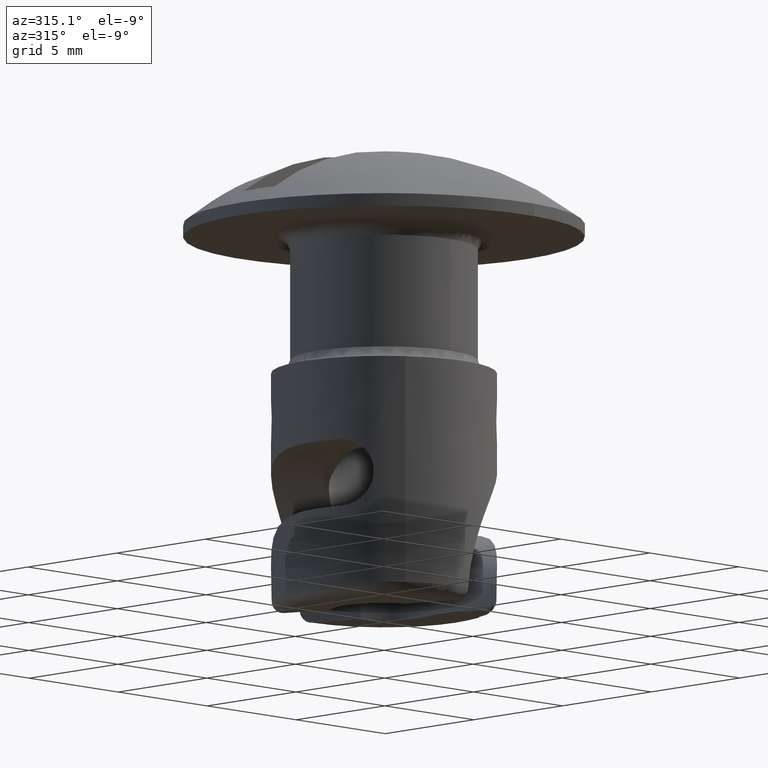
[diagram: clean part render]
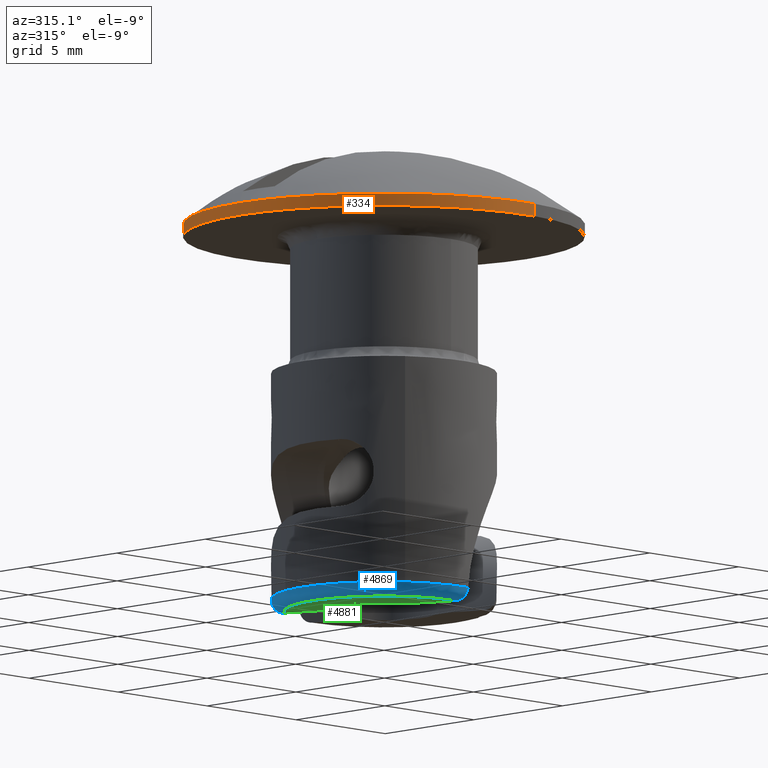
[diagram: same view with three faces highlighted in distinct colors, each labeled with its STEP entity id]
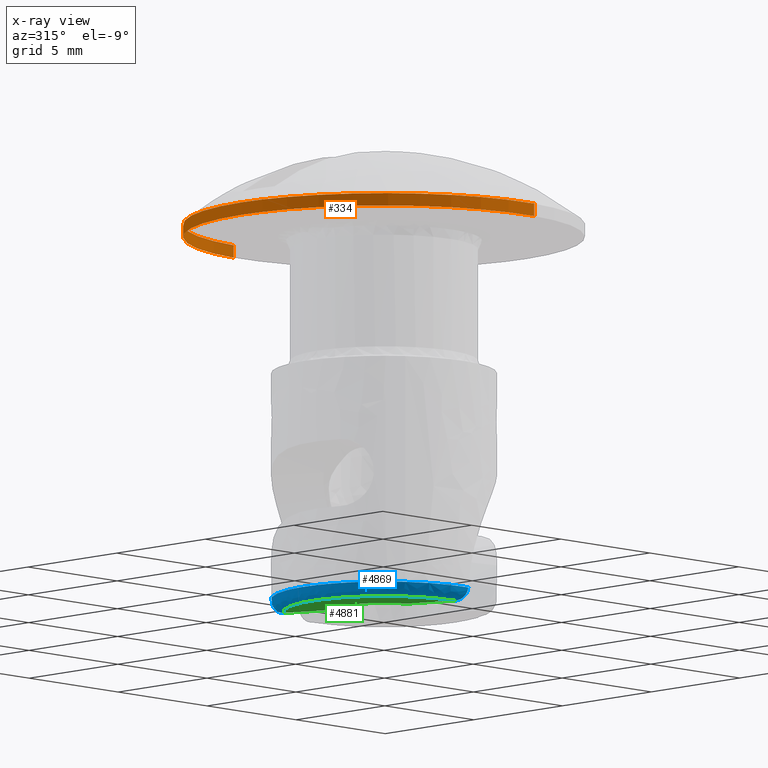
[diagram: x-ray of the same camera — body ghosted, the three highlighted faces saturated]
A machine part, auxiliary view with three faces highlighted in distinct colors.
The next image is the same camera in x-ray (body ghosted, the three faces saturated) — at least one of them is partly hidden behind the body in this view.
Their STEP definitions:

[orange] entity #334 — the highlighted face is a freeform B-spline surface patch.
#140=CARTESIAN_POINT('',(0.488382248304818,-7.985078758503498,0.500000000000000));
#141=VERTEX_POINT('',#140);
#142=CARTESIAN_POINT('',(-8.0,0.0,0.500000000000000));
#143=VERTEX_POINT('',#142);
#144=CARTESIAN_POINT('',(0.488382248304818,-7.985078758503498,0.500000000000000));
#145=CARTESIAN_POINT('',(0.244419063894726,-7.999999999997727,0.500000000000000));
#146=CARTESIAN_POINT('',(-1.360641E-013,-7.999999999997762,0.500000000000000));
#147=CARTESIAN_POINT('',(-8.000000000000066,-7.999999999998915,0.500000000000000));
#148=CARTESIAN_POINT('',(-8.0,0.0,0.500000000000000));
#156=(BOUNDED_CURVE()B_SPLINE_CURVE(2,(#144,#145,#146,#147,#148),.UNSPECIFIED.,.F.,.U.)B_SPLINE_CURVE_WITH_KNOTS((3,2,3),(0.739333093362728,0.750000000000000,1.0),.UNSPECIFIED.)CURVE()GEOMETRIC_REPRESENTATION_ITEM()RATIONAL_B_SPLINE_CURVE((0.976072322690110,0.987502941520907,1.0,0.707106781186548,1.0))REPRESENTATION_ITEM(''));
#157=EDGE_CURVE('',#141,#143,#156,.T.);
#174=CARTESIAN_POINT('',(-0.488382248304819,7.985078758503498,0.500000000000000));
#175=VERTEX_POINT('',#174);
#191=CARTESIAN_POINT('',(-8.0,0.0,0.500000000000000));
#192=CARTESIAN_POINT('',(-7.999999999999930,7.525654264779715,0.500000000000000));
#193=CARTESIAN_POINT('',(-0.488382248304818,7.985078758503499,0.500000000000000));
#201=(BOUNDED_CURVE()B_SPLINE_CURVE(2,(#191,#192,#193),.UNSPECIFIED.,.F.,.U.)B_SPLINE_CURVE_WITH_KNOTS((3,3),(0.0,0.239333093362728),.UNSPECIFIED.)CURVE()GEOMETRIC_REPRESENTATION_ITEM()RATIONAL_B_SPLINE_CURVE((1.0,0.719603839665640,0.976072322690110))REPRESENTATION_ITEM(''));
#202=EDGE_CURVE('',#143,#175,#201,.T.);
#231=CARTESIAN_POINT('',(-0.488382172481899,7.985078763140910,-1.278951E-013));
#232=VERTEX_POINT('',#231);
#250=CARTESIAN_POINT('',(-0.488382248304819,7.985078758503498,0.500000000000000));
#251=CARTESIAN_POINT('',(-0.488382172481899,7.985078763140910,-1.278951E-013));
#252=QUASI_UNIFORM_CURVE('',1,(#250,#251),.UNSPECIFIED.,.F.,.U.);
#253=EDGE_CURVE('',#175,#232,#252,.T.);
#257=CARTESIAN_POINT('',(0.488382172481897,-7.985078763140910,-1.278378E-013));
#258=VERTEX_POINT('',#257);
#259=CARTESIAN_POINT('',(0.488382248304818,-7.985078758503498,0.500000000000000));
#260=CARTESIAN_POINT('',(0.488382172481897,-7.985078763140910,-1.278378E-013));
#261=QUASI_UNIFORM_CURVE('',1,(#259,#260),.UNSPECIFIED.,.F.,.U.);
#262=EDGE_CURVE('',#141,#258,#261,.T.);
#280=CARTESIAN_POINT('',(0.488388316278856,-7.985078387374934,0.512500000000000));
#281=CARTESIAN_POINT('',(-7.496690071096078,-8.473466703653790,0.512500000000000));
#282=CARTESIAN_POINT('',(-7.985078387374934,-0.488388316278856,0.512500000000000));
#283=CARTESIAN_POINT('',(-8.473466703653790,7.496690071096078,0.512500000000000));
#284=CARTESIAN_POINT('',(-0.488388316278856,7.985078387374934,0.512500000000000));
#285=CARTESIAN_POINT('',(0.488388316278856,-7.985078387374934,-0.012812500000000));
#286=CARTESIAN_POINT('',(-7.496690071096078,-8.473466703653790,-0.012812500000000));
#287=CARTESIAN_POINT('',(-7.985078387374934,-0.488388316278856,-0.012812500000000));
#288=CARTESIAN_POINT('',(-8.473466703653790,7.496690071096078,-0.012812500000000));
#289=CARTESIAN_POINT('',(-0.488388316278856,7.985078387374934,-0.012812500000000));
#297=(BOUNDED_SURFACE()B_SPLINE_SURFACE(2,1,((#280,#285),(#281,#286),(#282,#287),(#283,#288),(#284,#289)),.UNSPECIFIED.,.F.,.F.,.U.)B_SPLINE_SURFACE_WITH_KNOTS((3,2,3),(2,2),(0.0,13.254833995939039,26.509667991878072),(0.0,1.0),.UNSPECIFIED.)GEOMETRIC_REPRESENTATION_ITEM()RATIONAL_B_SPLINE_SURFACE(((1.0,1.0),(0.707106781186548,0.707106781186548),(1.0,1.0),(0.707106781186548,0.707106781186548),(1.0,1.0)))REPRESENTATION_ITEM('')SURFACE());
#298=CARTESIAN_POINT('',(-8.0,0.0,0.0));
#299=VERTEX_POINT('',#298);
#300=CARTESIAN_POINT('',(-8.0,0.0,0.0));
#301=CARTESIAN_POINT('',(-7.999999999999928,7.525654336373638,-6.394755E-014));
#302=CARTESIAN_POINT('',(-0.488382172481899,7.985078763140910,-1.278951E-013));
#310=(BOUNDED_CURVE()B_SPLINE_CURVE(2,(#300,#301,#302),.UNSPECIFIED.,.F.,.U.)B_SPLINE_CURVE_WITH_KNOTS((3,3),(0.0,0.239333095001159),.UNSPECIFIED.)CURVE()GEOMETRIC_REPRESENTATION_ITEM()RATIONAL_B_SPLINE_CURVE((1.0,0.719603837746098,0.976072326201585))REPRESENTATION_ITEM(''));
#311=EDGE_CURVE('',#299,#232,#310,.T.);
#312=ORIENTED_EDGE('',*,*,#311,.F.);
#313=CARTESIAN_POINT('',(0.488382172481897,-7.985078763140910,-1.278378E-013));
#314=CARTESIAN_POINT('',(0.244419025876966,-7.999999999997669,-1.260008E-013));
#315=CARTESIAN_POINT('',(-1.404811E-013,-7.999999999997706,-1.240479E-013));
#316=CARTESIAN_POINT('',(-8.000000000000069,-7.999999999998890,-6.012896E-014));
#317=CARTESIAN_POINT('',(-8.0,0.0,0.0));
#325=(BOUNDED_CURVE()B_SPLINE_CURVE(2,(#313,#314,#315,#316,#317),.UNSPECIFIED.,.F.,.U.)B_SPLINE_CURVE_WITH_KNOTS((3,2,3),(0.739333095001159,0.750000000000000,1.0),.UNSPECIFIED.)CURVE()GEOMETRIC_REPRESENTATION_ITEM()RATIONAL_B_SPLINE_CURVE((0.976072326201585,0.987502943440449,1.0,0.707106781186548,1.0))REPRESENTATION_ITEM(''));
#326=EDGE_CURVE('',#258,#299,#325,.T.);
#327=ORIENTED_EDGE('',*,*,#326,.F.);
#328=ORIENTED_EDGE('',*,*,#262,.F.);
#329=ORIENTED_EDGE('',*,*,#157,.T.);
#330=ORIENTED_EDGE('',*,*,#202,.T.);
#331=ORIENTED_EDGE('',*,*,#253,.T.);
#332=EDGE_LOOP('',(#312,#327,#328,#329,#330,#331));
#333=FACE_OUTER_BOUND('',#332,.T.);
#334=ADVANCED_FACE('',(#333),#297,.T.);

[blue] entity #4869 — the highlighted face is a freeform B-spline surface patch.
#3065=CARTESIAN_POINT('',(-2.524506964124516,-3.725166383946737,-14.600000000000000));
#3066=VERTEX_POINT('',#3065);
#3072=CARTESIAN_POINT('',(0.255835677203764,-4.492721681371959,-14.600000000000000));
#3073=VERTEX_POINT('',#3072);
#3074=CARTESIAN_POINT('',(-2.524506964124518,-3.725166383946737,-14.600000000000007));
#3075=CARTESIAN_POINT('',(-1.264178414866267,-4.579278085748483,-14.600000000000003));
#3076=CARTESIAN_POINT('',(0.255835677203766,-4.492721681371959,-14.600000000000000));
#3084=(BOUNDED_CURVE()B_SPLINE_CURVE(2,(#3074,#3075,#3076),.UNSPECIFIED.,.F.,.U.)B_SPLINE_CURVE_WITH_KNOTS((3,3),(0.742240525514748,1.0),.UNSPECIFIED.)CURVE()GEOMETRIC_REPRESENTATION_ITEM()RATIONAL_B_SPLINE_CURVE((0.903464662911373,0.900372432643656,1.0))REPRESENTATION_ITEM(''));
#3085=EDGE_CURVE('',#3066,#3073,#3084,.T.);
#3181=CARTESIAN_POINT('',(-2.793620478200045,3.527844189272160,-14.600000000000000));
#3182=VERTEX_POINT('',#3181);
#3224=CARTESIAN_POINT('',(-2.793620478200044,3.527844189272161,-14.600000000000000));
#3225=CARTESIAN_POINT('',(-5.377604140637789,1.481645636435922,-14.600000000000005));
#3226=CARTESIAN_POINT('',(-4.206240262440706,-1.599231957729317,-14.600000000000000));
#3227=CARTESIAN_POINT('',(-3.701116216030955,-2.927790389335699,-14.600000000000003));
#3228=CARTESIAN_POINT('',(-2.524506964124518,-3.725166383946737,-14.600000000000007));
#3236=(BOUNDED_CURVE()B_SPLINE_CURVE(2,(#3224,#3225,#3226,#3227,#3228),.UNSPECIFIED.,.F.,.U.)B_SPLINE_CURVE_WITH_KNOTS((3,2,3),(0.0,0.500000000000000,0.742240525514748),.UNSPECIFIED.)CURVE()GEOMETRIC_REPRESENTATION_ITEM()RATIONAL_B_SPLINE_CURVE((1.0,0.806743151623619,1.0,0.906370718979963,0.903464662911373))REPRESENTATION_ITEM(''));
#3237=EDGE_CURVE('',#3182,#3066,#3236,.T.);
#4729=CARTESIAN_POINT('',(-2.567081411835590,3.067587492641355,-15.100000000000000));
#4730=VERTEX_POINT('',#4729);
#4736=CARTESIAN_POINT('',(-2.793620478200045,3.527844189272160,-14.600000000000000));
#4737=CARTESIAN_POINT('',(-2.789903798512062,3.530787344335196,-14.633352497946451));
#4738=CARTESIAN_POINT('',(-2.785303165965376,3.530207134414157,-14.666299941760510));
#4739=CARTESIAN_POINT('',(-2.774313234701569,3.522154608180167,-14.731393209000171));
#4740=CARTESIAN_POINT('',(-2.767831427371858,3.514512845298063,-14.763872588863681));
#4741=CARTESIAN_POINT('',(-2.753443721895177,3.492870947528917,-14.825203877809480));
#4742=CARTESIAN_POINT('',(-2.745516102203675,3.478915548135293,-14.854315445250560));
#4743=CARTESIAN_POINT('',(-2.727983818350073,3.444833840834312,-14.909418506634250));
#4744=CARTESIAN_POINT('',(-2.718548013612408,3.425022710054215,-14.934817559307181));
#4745=CARTESIAN_POINT('',(-2.698555939836987,3.381076247171965,-14.980562608616040));
#4746=CARTESIAN_POINT('',(-2.687821652637062,3.356539624931025,-15.001259684076620));
#4747=CARTESIAN_POINT('',(-2.665545998352137,3.304530334382131,-15.036743419875220));
#4748=CARTESIAN_POINT('',(-2.654023357519076,3.277119598370120,-15.051595013987621));
#4749=CARTESIAN_POINT('',(-2.630045943968459,3.219653270722164,-15.075699503657100));
#4750=CARTESIAN_POINT('',(-2.617582725218681,3.189574062914243,-15.084872801267471));
#4751=CARTESIAN_POINT('',(-2.592581692236621,3.129187764658154,-15.096953038428550));
#4752=CARTESIAN_POINT('',(-2.579922836019454,3.098589433096658,-15.099999999999980));
#4753=CARTESIAN_POINT('',(-2.567081411836028,3.067587492641173,-15.100000000000000));
#4754=B_SPLINE_CURVE_WITH_KNOTS('',3,(#4736,#4737,#4738,#4739,#4740,#4741,#4742,#4743,#4744,#4745,#4746,#4747,#4748,#4749,#4750,#4751,#4752,#4753),.UNSPECIFIED.,.F.,.U.,(4,2,2,2,2,2,2,2,4),(0.0,0.125000000000000,0.250000000000000,0.375000000000000,0.500000000000000,0.625000000000000,0.750000000000000,0.875000000000000,1.0),.UNSPECIFIED.);
#4755=EDGE_CURVE('',#3182,#4730,#4754,.T.);
#4784=CARTESIAN_POINT('',(0.030791286977417,-3.999881485325070,-15.100000000000000));
#4785=VERTEX_POINT('',#4784);
#4786=CARTESIAN_POINT('',(0.255835677203764,-4.492721681371959,-14.600000000000000));
#4787=CARTESIAN_POINT('',(0.252994784519830,-4.492883454514210,-14.634228709476860));
#4788=CARTESIAN_POINT('',(0.249098204039347,-4.489619777298075,-14.667765084831300));
#4789=CARTESIAN_POINT('',(0.239273137615048,-4.476621532452521,-14.733524811676331));
#4790=CARTESIAN_POINT('',(0.233255437557799,-4.466707678603228,-14.766096835535039));
#4791=CARTESIAN_POINT('',(0.219494394031669,-4.441045069627467,-14.827574710866960));
#4792=CARTESIAN_POINT('',(0.211765500974590,-4.425365662892159,-14.856586920983791));
#4793=CARTESIAN_POINT('',(0.198824569795882,-4.397677593459401,-14.897549877140291));
#4794=CARTESIAN_POINT('',(0.194260459212276,-4.387693549381862,-14.910832596126671));
#4795=CARTESIAN_POINT('',(0.184835555705029,-4.366712026077098,-14.936026175337931));
#4796=CARTESIAN_POINT('',(0.179962766335683,-4.355690904373759,-14.947986242169160));
#4797=CARTESIAN_POINT('',(0.164852847782284,-4.321099029849078,-14.982017785988180));
#4798=CARTESIAN_POINT('',(0.154094852595214,-4.295933484567970,-15.002308032155019));
#4799=CARTESIAN_POINT('',(0.131260464118769,-4.241877389090666,-15.037697268582480));
#4800=CARTESIAN_POINT('',(0.119466997335865,-4.213661440715496,-15.052378627561779));
#4801=CARTESIAN_POINT('',(0.095067859496002,-4.155039120186651,-15.076074351253240));
#4802=CARTESIAN_POINT('',(0.082335389200371,-4.124324898593797,-15.085129491477790));
#4803=CARTESIAN_POINT('',(0.056678608778121,-4.062393181831436,-15.097059006772250));
#4804=CARTESIAN_POINT('',(0.043776522898089,-4.031230618026926,-15.100000000000060));
#4805=CARTESIAN_POINT('',(0.030791286977584,-3.999881485325006,-15.100000000000060));
#4806=B_SPLINE_CURVE_WITH_KNOTS('',3,(#4786,#4787,#4788,#4789,#4790,#4791,#4792,#4793,#4794,#4795,#4796,#4797,#4798,#4799,#4800,#4801,#4802,#4803,#4804,#4805),.UNSPECIFIED.,.F.,.U.,(4,2,2,2,2,2,2,2,2,4),(0.0,0.125000000000003,0.250000000000006,0.375000000000010,0.437500000000011,0.500000000000013,0.625000000000010,0.750000000000006,0.875000000000003,1.0),.UNSPECIFIED.);
#4807=EDGE_CURVE('',#3073,#4785,#4806,.T.);
#4817=CARTESIAN_POINT('',(-2.064292279982200,3.385521764386328,-15.098789681149944));
#4818=CARTESIAN_POINT('',(-4.880381625981588,1.668435920237164,-15.098789681149949));
#4819=CARTESIAN_POINT('',(-3.704830481620947,-1.413255580841602,-15.098789681149942));
#4820=CARTESIAN_POINT('',(-2.534755863912893,-4.480590441019051,-15.098789681149949));
#4821=CARTESIAN_POINT('',(0.697049386890529,-3.903483365734143,-15.098789681149938));
#4822=CARTESIAN_POINT('',(-2.362874684558925,3.875208830001874,-15.138768598005983));
#4823=CARTESIAN_POINT('',(-5.586287516958530,1.909761053202778,-15.138768598005983));
#4824=CARTESIAN_POINT('',(-4.240702850315301,-1.617671037751996,-15.138768598005981));
#4825=CARTESIAN_POINT('',(-2.901386843547517,-5.128669921224486,-15.138768598005985));
#4826=CARTESIAN_POINT('',(0.797871680353885,-4.468089192568028,-15.138768598005983));
#4827=CARTESIAN_POINT('',(-2.342061741276119,3.841074771977159,-14.565231436331496));
#4828=CARTESIAN_POINT('',(-5.537081739770384,1.892939277277136,-14.565231436331491));
#4829=CARTESIAN_POINT('',(-4.203349406021522,-1.603422082536982,-14.565231436331494));
#4830=CARTESIAN_POINT('',(-2.875830515820594,-5.083494983728126,-14.565231436331489));
#4831=CARTESIAN_POINT('',(0.790843775683916,-4.428732857864731,-14.565231436331487));
#4839=(BOUNDED_SURFACE()B_SPLINE_SURFACE(2,2,((#4817,#4822,#4827),(#4818,#4823,#4828),(#4819,#4824,#4829),(#4820,#4825,#4830),(#4821,#4826,#4831)),.UNSPECIFIED.,.F.,.F.,.U.)B_SPLINE_SURFACE_WITH_KNOTS((3,2,3),(3,3),(0.0,6.505677668738225,12.988312268769359),(0.0,0.911186994557405),.UNSPECIFIED.)GEOMETRIC_REPRESENTATION_ITEM()RATIONAL_B_SPLINE_SURFACE(((0.897027619993132,0.588651900026298,0.897027608696170),(0.698127413969456,0.458128623393684,0.698127405177398),(0.919258316275454,0.603240237457421,0.919258304698524),(0.698910658211571,0.458642607802892,0.698910649409649),(0.895623883069225,0.587730732841500,0.895623871789941)))REPRESENTATION_ITEM('')SURFACE());
#4840=ORIENTED_EDGE('',*,*,#3085,.F.);
#4841=ORIENTED_EDGE('',*,*,#3237,.F.);
#4842=ORIENTED_EDGE('',*,*,#4755,.T.);
#4843=CARTESIAN_POINT('',(0.030791286977417,-3.999881485325070,-15.100000000000000));
#4844=CARTESIAN_POINT('',(-0.282151921456968,-4.002365041850558,-15.099999999999991));
#4845=CARTESIAN_POINT('',(-0.780712131532924,-3.947346919580810,-15.100000000000000));
#4846=CARTESIAN_POINT('',(-1.448099334761140,-3.743471356037649,-15.100000000000080));
#4847=CARTESIAN_POINT('',(-1.940575024831918,-3.511515253942681,-15.099999999999820));
#4848=CARTESIAN_POINT('',(-2.450906891534664,-3.181337143377427,-15.099999999999961));
#4849=CARTESIAN_POINT('',(-2.925154862973179,-2.758999562826996,-15.100000000000330));
#4850=CARTESIAN_POINT('',(-3.321131494309320,-2.255036925000451,-15.100000000000140));
#4851=CARTESIAN_POINT('',(-3.578618552268526,-1.805189022303765,-15.099999999999900));
#4852=CARTESIAN_POINT('',(-3.754368994439637,-1.400523571729295,-15.100000000000041));
#4853=CARTESIAN_POINT('',(-3.891504525001881,-0.967584286488055,-15.100000000000160));
#4854=CARTESIAN_POINT('',(-3.990207548960007,-0.439035194962329,-15.099999999999261));
#4855=CARTESIAN_POINT('',(-4.014392041110416,0.188355986182768,-15.100000000001231));
#4856=CARTESIAN_POINT('',(-3.935943020520584,0.792405885175597,-15.099999999997589));
#4857=CARTESIAN_POINT('',(-3.790368287971257,1.303113007706950,-15.100000000000390));
#4858=CARTESIAN_POINT('',(-3.599338027867320,1.770792172174831,-15.100000000000239));
#4859=CARTESIAN_POINT('',(-3.339613890609362,2.227446414756895,-15.099999999999730));
#4860=CARTESIAN_POINT('',(-2.980979905188400,2.686449860164197,-15.100000000000470));
#4861=CARTESIAN_POINT('',(-2.714022146201320,2.944631880738329,-15.099999999999490));
#4862=CARTESIAN_POINT('',(-2.567081411835590,3.067587492641355,-15.100000000000000));
#4863=B_SPLINE_CURVE_WITH_KNOTS('',3,(#4843,#4844,#4845,#4846,#4847,#4848,#4849,#4850,#4851,#4852,#4853,#4854,#4855,#4856,#4857,#4858,#4859,#4860,#4861,#4862),.UNSPECIFIED.,.F.,.U.,(4,1,1,1,1,1,1,1,1,1,1,1,1,1,1,1,1,4),(0.000000022408845,0.938835462657982,1.494481130257725,2.088446485182360,2.567449369126712,3.314695072397933,3.985294692083691,4.483459794648965,4.866661538427628,5.307327873150834,5.843813608553443,6.476098414058850,7.185024162731711,7.664027002699344,8.066391437590276,8.698675878096347,9.235161165602838,9.809953563454704),.UNSPECIFIED.);
#4864=EDGE_CURVE('',#4785,#4730,#4863,.T.);
#4865=ORIENTED_EDGE('',*,*,#4864,.F.);
#4866=ORIENTED_EDGE('',*,*,#4807,.F.);
#4867=EDGE_LOOP('',(#4840,#4841,#4842,#4865,#4866));
#4868=FACE_OUTER_BOUND('',#4867,.T.);
#4869=ADVANCED_FACE('',(#4868),#4839,.T.);

[green] entity #4881 — the highlighted face is a freeform B-spline surface patch.
#3441=CARTESIAN_POINT('',(-0.772819371805344,-2.059793732042790,-15.100000000000000));
#3442=VERTEX_POINT('',#3441);
#3460=CARTESIAN_POINT('',(-1.812775825419165,1.246532713881200,-15.100000000000000));
#3461=VERTEX_POINT('',#3460);
#3462=CARTESIAN_POINT('',(-1.812775825419165,1.246532713881200,-15.100000000000000));
#3463=CARTESIAN_POINT('',(-1.924738459636302,1.083840479664586,-15.099999999999920));
#3464=CARTESIAN_POINT('',(-2.059401581808920,0.816980183095650,-15.100000000000110));
#3465=CARTESIAN_POINT('',(-2.160618613324385,0.445050030838552,-15.099999999999950));
#3466=CARTESIAN_POINT('',(-2.201503710595248,0.151108622681118,-15.099999999999950));
#3467=CARTESIAN_POINT('',(-2.202499777325901,-0.130306932255301,-15.100000000000220));
#3468=CARTESIAN_POINT('',(-2.165411717149585,-0.419438526828946,-15.099999999999900));
#3469=CARTESIAN_POINT('',(-2.092800946254056,-0.701947001244747,-15.100000000000080));
#3470=CARTESIAN_POINT('',(-1.953003415951163,-1.038901360250868,-15.099999999999950));
#3471=CARTESIAN_POINT('',(-1.745828558466964,-1.359283111081592,-15.100000000000129));
#3472=CARTESIAN_POINT('',(-1.502034672624614,-1.616616228330153,-15.099999999999991));
#3473=CARTESIAN_POINT('',(-1.197948640449607,-1.861462840304983,-15.099999999999980));
#3474=CARTESIAN_POINT('',(-0.952884073636184,-1.992303587932012,-15.100000000000019));
#3475=CARTESIAN_POINT('',(-0.772819371805344,-2.059793732042790,-15.100000000000000));
#3476=B_SPLINE_CURVE_WITH_KNOTS('',3,(#3462,#3463,#3464,#3465,#3466,#3467,#3468,#3469,#3470,#3471,#3472,#3473,#3474,#3475),.UNSPECIFIED.,.F.,.U.,(4,1,1,1,1,1,1,1,1,1,1,4),(0.000000018965175,0.592459249150214,0.888694236611591,1.153745096310073,1.481161366181938,1.730616289626399,2.026842547363693,2.354255910001518,2.821994196842401,3.165002247829010,3.414462561723730,3.991330957084252),.UNSPECIFIED.);
#3477=EDGE_CURVE('',#3461,#3442,#3476,.T.);
#4729=CARTESIAN_POINT('',(-2.567081411835590,3.067587492641355,-15.100000000000000));
#4730=VERTEX_POINT('',#4729);
#4731=CARTESIAN_POINT('',(-1.812775825419165,1.246532713881200,-15.100000000000000));
#4732=CARTESIAN_POINT('',(-2.567081411835590,3.067587492641355,-15.100000000000000));
#4733=QUASI_UNIFORM_CURVE('',1,(#4731,#4732),.UNSPECIFIED.,.F.,.U.);
#4734=EDGE_CURVE('',#3461,#4730,#4733,.T.);
#4784=CARTESIAN_POINT('',(0.030791286977417,-3.999881485325070,-15.100000000000000));
#4785=VERTEX_POINT('',#4784);
#4809=CARTESIAN_POINT('',(-0.772819371805344,-2.059793732042790,-15.100000000000000));
#4810=CARTESIAN_POINT('',(0.030791286977417,-3.999881485325070,-15.100000000000000));
#4811=QUASI_UNIFORM_CURVE('',1,(#4809,#4810),.UNSPECIFIED.,.F.,.U.);
#4812=EDGE_CURVE('',#3442,#4785,#4811,.T.);
#4843=CARTESIAN_POINT('',(0.030791286977417,-3.999881485325070,-15.100000000000000));
#4844=CARTESIAN_POINT('',(-0.282151921456968,-4.002365041850558,-15.099999999999991));
#4845=CARTESIAN_POINT('',(-0.780712131532924,-3.947346919580810,-15.100000000000000));
#4846=CARTESIAN_POINT('',(-1.448099334761140,-3.743471356037649,-15.100000000000080));
#4847=CARTESIAN_POINT('',(-1.940575024831918,-3.511515253942681,-15.099999999999820));
#4848=CARTESIAN_POINT('',(-2.450906891534664,-3.181337143377427,-15.099999999999961));
#4849=CARTESIAN_POINT('',(-2.925154862973179,-2.758999562826996,-15.100000000000330));
#4850=CARTESIAN_POINT('',(-3.321131494309320,-2.255036925000451,-15.100000000000140));
#4851=CARTESIAN_POINT('',(-3.578618552268526,-1.805189022303765,-15.099999999999900));
#4852=CARTESIAN_POINT('',(-3.754368994439637,-1.400523571729295,-15.100000000000041));
#4853=CARTESIAN_POINT('',(-3.891504525001881,-0.967584286488055,-15.100000000000160));
#4854=CARTESIAN_POINT('',(-3.990207548960007,-0.439035194962329,-15.099999999999261));
#4855=CARTESIAN_POINT('',(-4.014392041110416,0.188355986182768,-15.100000000001231));
#4856=CARTESIAN_POINT('',(-3.935943020520584,0.792405885175597,-15.099999999997589));
#4857=CARTESIAN_POINT('',(-3.790368287971257,1.303113007706950,-15.100000000000390));
#4858=CARTESIAN_POINT('',(-3.599338027867320,1.770792172174831,-15.100000000000239));
#4859=CARTESIAN_POINT('',(-3.339613890609362,2.227446414756895,-15.099999999999730));
#4860=CARTESIAN_POINT('',(-2.980979905188400,2.686449860164197,-15.100000000000470));
#4861=CARTESIAN_POINT('',(-2.714022146201320,2.944631880738329,-15.099999999999490));
#4862=CARTESIAN_POINT('',(-2.567081411835590,3.067587492641355,-15.100000000000000));
#4863=B_SPLINE_CURVE_WITH_KNOTS('',3,(#4843,#4844,#4845,#4846,#4847,#4848,#4849,#4850,#4851,#4852,#4853,#4854,#4855,#4856,#4857,#4858,#4859,#4860,#4861,#4862),.UNSPECIFIED.,.F.,.U.,(4,1,1,1,1,1,1,1,1,1,1,1,1,1,1,1,1,4),(0.000000022408845,0.938835462657982,1.494481130257725,2.088446485182360,2.567449369126712,3.314695072397933,3.985294692083691,4.483459794648965,4.866661538427628,5.307327873150834,5.843813608553443,6.476098414058850,7.185024162731711,7.664027002699344,8.066391437590276,8.698675878096347,9.235161165602838,9.809953563454704),.UNSPECIFIED.);
#4864=EDGE_CURVE('',#4785,#4730,#4863,.T.);
#4870=CARTESIAN_POINT('',(-4.199998842298437,-4.352901547076368,-15.100000000000000));
#4871=CARTESIAN_POINT('',(0.232065702565427,-4.352901547076368,-15.100000000000000));
#4872=CARTESIAN_POINT('',(-4.199998842298437,3.420607743956942,-15.100000000000000));
#4873=CARTESIAN_POINT('',(0.232065702565427,3.420607743956942,-15.100000000000000));
#4874=B_SPLINE_SURFACE_WITH_KNOTS('',1,1,((#4870,#4872),(#4871,#4873)),.UNSPECIFIED.,.F.,.F.,.U.,(2,2),(2,2),(0.0,4.432064544863864),(0.0,7.773509291033309),.UNSPECIFIED.);
#4875=ORIENTED_EDGE('',*,*,#4734,.F.);
#4876=ORIENTED_EDGE('',*,*,#3477,.T.);
#4877=ORIENTED_EDGE('',*,*,#4812,.T.);
#4878=ORIENTED_EDGE('',*,*,#4864,.T.);
#4879=EDGE_LOOP('',(#4875,#4876,#4877,#4878));
#4880=FACE_OUTER_BOUND('',#4879,.T.);
#4881=ADVANCED_FACE('',(#4880),#4874,.F.);